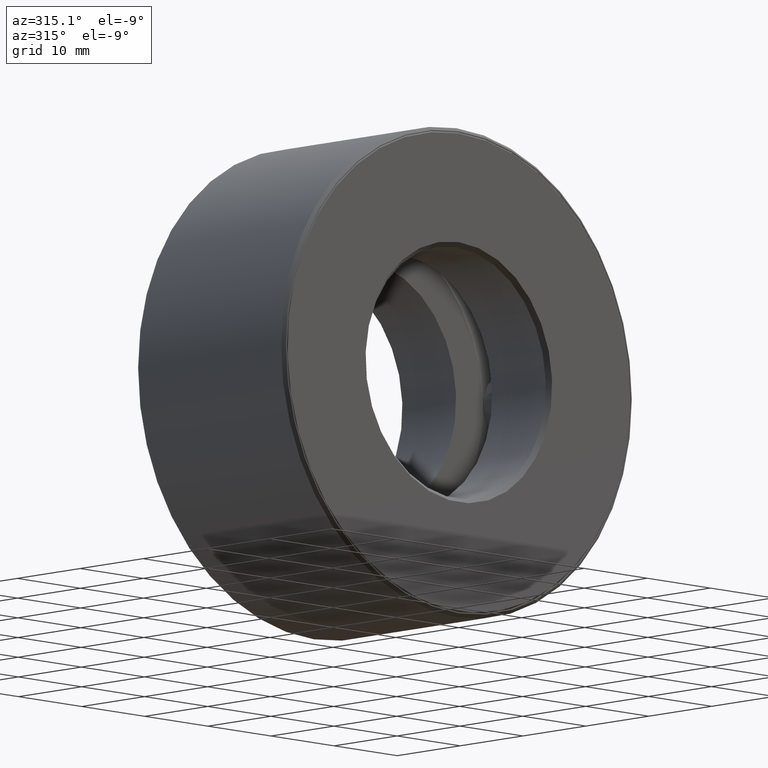
[diagram: clean part render]
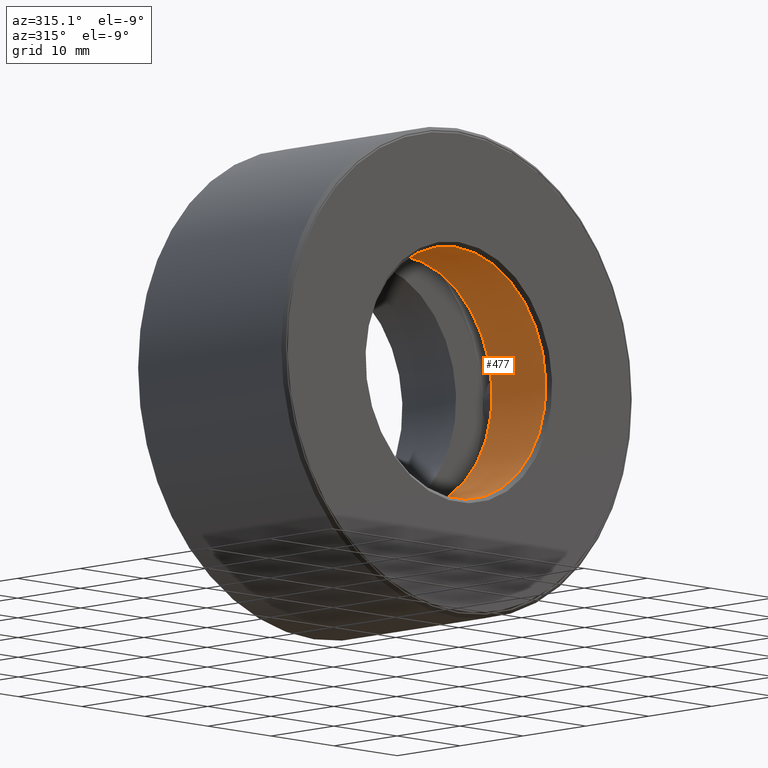
[diagram: same view with one face highlighted and labeled with its STEP entity id]
A machine part, auxiliary view. The second image highlights one B-rep face of the part: STEP entity #477.
In plain terms, the highlighted cylindrical surface (bore or boss wall) has radius 14.2875 mm, axis along (-0, 1, -0).
Its self-contained STEP definition (entity closure, byte-faithful):
#8 = CIRCLE ( 'NONE', #367, 0.5624999999999998900 ) ;
#28 = CARTESIAN_POINT ( 'NONE',  ( 0.0000000000000000000, 0.3562500000000000700, 0.5625000000000001100 ) ) ;
#128 = AXIS2_PLACEMENT_3D ( 'NONE', #479, #281, #531 ) ;
#143 = ORIENTED_EDGE ( 'NONE', *, *, #503, .T. ) ;
#162 = CIRCLE ( 'NONE', #128, 0.5625000000000001100 ) ;
#192 = DIRECTION ( 'NONE',  ( 0.0000000000000000000, 0.0000000000000000000, 1.000000000000000000 ) ) ;
#206 = VERTEX_POINT ( 'NONE', #492 ) ;
#212 = EDGE_LOOP ( 'NONE', ( #143 ) ) ;
#242 = DIRECTION ( 'NONE',  ( -0.0000000000000000000, 1.000000000000000000, -0.0000000000000000000 ) ) ;
#244 = VERTEX_POINT ( 'NONE', #28 ) ;
#266 = FACE_OUTER_BOUND ( 'NONE', #212, .T. ) ;
#281 = DIRECTION ( 'NONE',  ( -0.0000000000000000000, 1.000000000000000000, -0.0000000000000000000 ) ) ;
#283 = CARTESIAN_POINT ( 'NONE',  ( 0.0000000000000000000, 0.0000000000000000000, 0.0000000000000000000 ) ) ;
#306 = CYLINDRICAL_SURFACE ( 'NONE', #452, 0.5625000000000000000 ) ;
#367 = AXIS2_PLACEMENT_3D ( 'NONE', #432, #572, #529 ) ;
#383 = EDGE_CURVE ( 'NONE', #206, #206, #8, .T. ) ;
#402 = FACE_OUTER_BOUND ( 'NONE', #481, .T. ) ;
#432 = CARTESIAN_POINT ( 'NONE',  ( 0.0000000000000000000, 0.02000000000000019800, 0.0000000000000000000 ) ) ;
#452 = AXIS2_PLACEMENT_3D ( 'NONE', #283, #242, #192 ) ;
#477 = ADVANCED_FACE ( 'NONE', ( #402, #266 ), #306, .F. ) ;
#479 = CARTESIAN_POINT ( 'NONE',  ( 0.0000000000000000000, 0.3562500000000000700, 0.0000000000000000000 ) ) ;
#481 = EDGE_LOOP ( 'NONE', ( #591 ) ) ;
#492 = CARTESIAN_POINT ( 'NONE',  ( 0.0000000000000000000, 0.02000000000000019800, 0.5624999999999998900 ) ) ;
#503 = EDGE_CURVE ( 'NONE', #244, #244, #162, .T. ) ;
#529 = DIRECTION ( 'NONE',  ( 0.0000000000000000000, 0.0000000000000000000, 1.000000000000000000 ) ) ;
#531 = DIRECTION ( 'NONE',  ( 0.0000000000000000000, 0.0000000000000000000, 1.000000000000000000 ) ) ;
#572 = DIRECTION ( 'NONE',  ( -0.0000000000000000000, 1.000000000000000000, -0.0000000000000000000 ) ) ;
#591 = ORIENTED_EDGE ( 'NONE', *, *, #383, .F. ) ;